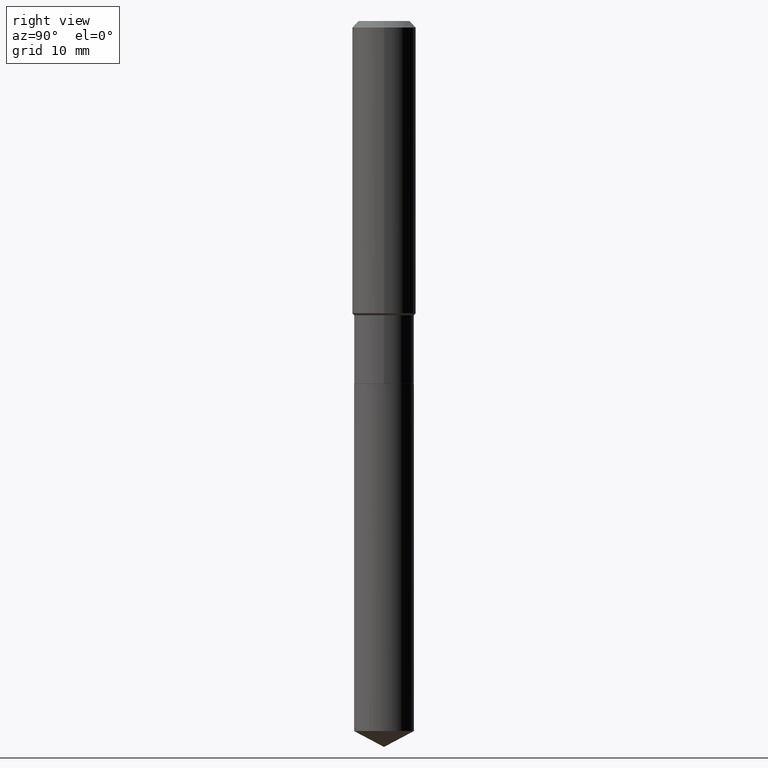
[diagram: clean part render]
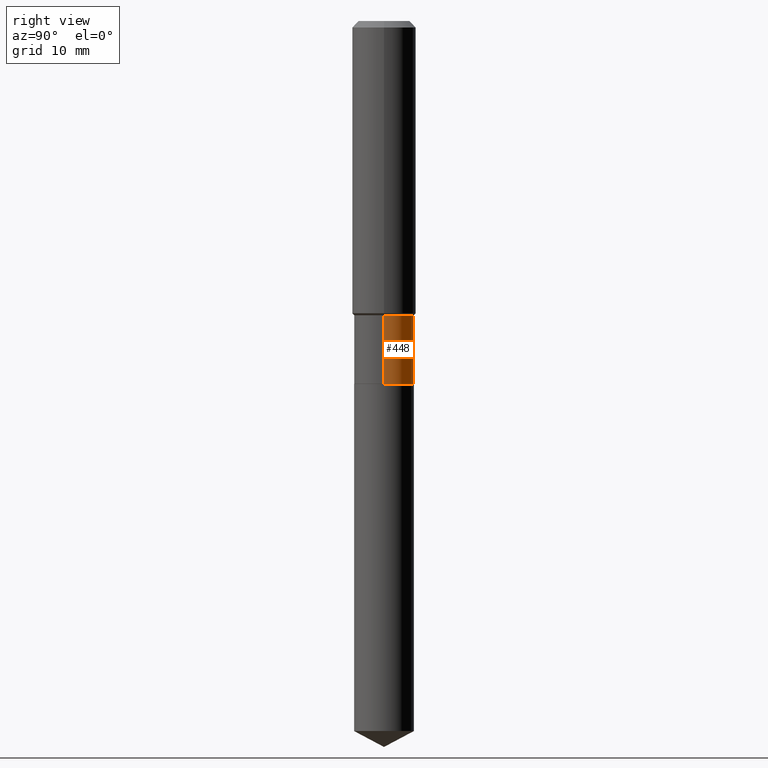
[diagram: same view with one face highlighted and labeled with its STEP entity id]
A machine part, right view. The second image highlights one B-rep face of the part: STEP entity #448.
In plain terms, the highlighted cylindrical surface (edge-blend (fillet) strip) has radius 3.7503 mm, axis along (-0, 0, 1).
Its self-contained STEP definition (entity closure, byte-faithful):
#36 = AXIS2_PLACEMENT_3D ( 'NONE', #202, #355, #318 ) ;
#41 = CARTESIAN_POINT ( 'NONE',  ( 0.1476500000000000035, -7.283928369094568636E-15, -1.790900000000000603 ) ) ;
#63 = CARTESIAN_POINT ( 'NONE',  ( -0.1476499999999999757, -4.611796919383547288E-15, -1.451799999999999979 ) ) ;
#65 = FACE_OUTER_BOUND ( 'NONE', #272, .T. ) ;
#68 = DIRECTION ( 'NONE',  ( -2.445468806185136597E-29, 3.491481338843145583E-15, 1.000000000000000000 ) ) ;
#72 = DIRECTION ( 'NONE',  ( -2.445468806185136597E-29, 3.491481338843145583E-15, 1.000000000000000000 ) ) ;
#120 = ORIENTED_EDGE ( 'NONE', *, *, #406, .T. ) ;
#143 = CYLINDRICAL_SURFACE ( 'NONE', #183, 0.1476500000000000035 ) ;
#151 = DIRECTION ( 'NONE',  ( 1.000000000000000000, -6.982962677686270655E-15, 0.000000000000000000 ) ) ;
#154 = VERTEX_POINT ( 'NONE', #41 ) ;
#176 = EDGE_CURVE ( 'NONE', #279, #276, #223, .T. ) ;
#183 = AXIS2_PLACEMENT_3D ( 'NONE', #412, #68, #377 ) ;
#202 = CARTESIAN_POINT ( 'NONE',  ( 3.550331612819581366E-29, -5.068932607732478922E-15, -1.451799999999999979 ) ) ;
#204 = VECTOR ( 'NONE', #210, 39.37007874015748143 ) ;
#210 = DIRECTION ( 'NONE',  ( -2.445468806185136877E-29, 3.491481338843145188E-15, 1.000000000000000000 ) ) ;
#214 = CARTESIAN_POINT ( 'NONE',  ( -0.1476500000000000312, -4.611796919383546499E-15, -1.790900000000000603 ) ) ;
#223 = CIRCLE ( 'NONE', #36, 0.1476499999999999757 ) ;
#238 = ORIENTED_EDGE ( 'NONE', *, *, #239, .T. ) ;
#239 = EDGE_CURVE ( 'NONE', #280, #276, #375, .T. ) ;
#255 = LINE ( 'NONE', #400, #489 ) ;
#272 = EDGE_LOOP ( 'NONE', ( #120, #238, #286, #383 ) ) ;
#276 = VERTEX_POINT ( 'NONE', #63 ) ;
#279 = VERTEX_POINT ( 'NONE', #372 ) ;
#280 = VERTEX_POINT ( 'NONE', #214 ) ;
#286 = ORIENTED_EDGE ( 'NONE', *, *, #176, .F. ) ;
#318 = DIRECTION ( 'NONE',  ( 1.000000000000000000, -6.982962677686265133E-15, 0.000000000000000000 ) ) ;
#348 = CIRCLE ( 'NONE', #438, 0.1476500000000000035 ) ;
#351 = EDGE_CURVE ( 'NONE', #154, #279, #255, .T. ) ;
#355 = DIRECTION ( 'NONE',  ( -2.445468806185136597E-29, 3.491481338843145583E-15, 1.000000000000000000 ) ) ;
#372 = CARTESIAN_POINT ( 'NONE',  ( 0.1476499999999999757, -6.099967047092856006E-15, -1.451799999999999979 ) ) ;
#375 = LINE ( 'NONE', #405, #204 ) ;
#377 = DIRECTION ( 'NONE',  ( 1.000000000000000000, -6.982962677686266711E-15, 4.876176775795935793E-29 ) ) ;
#383 = ORIENTED_EDGE ( 'NONE', *, *, #351, .F. ) ;
#400 = CARTESIAN_POINT ( 'NONE',  ( 0.1476500000000000035, -1.031034439360377281E-15, 7.199675009462699686E-30 ) ) ;
#405 = CARTESIAN_POINT ( 'NONE',  ( -0.1476500000000000035, 1.049116349349787949E-15, -7.262807660761367809E-30 ) ) ;
#406 = EDGE_CURVE ( 'NONE', #154, #280, #348, .T. ) ;
#407 = DIRECTION ( 'NONE',  ( -2.445468806185136877E-29, 3.491481338843145188E-15, 1.000000000000000000 ) ) ;
#412 = CARTESIAN_POINT ( 'NONE',  ( 0.000000000000000000, 0.000000000000000000, 0.000000000000000000 ) ) ;
#422 = CARTESIAN_POINT ( 'NONE',  ( 4.379590084996962044E-29, -6.252893929734190763E-15, -1.790900000000000603 ) ) ;
#438 = AXIS2_PLACEMENT_3D ( 'NONE', #422, #72, #151 ) ;
#448 = ADVANCED_FACE ( 'NONE', ( #65 ), #143, .T. ) ;
#489 = VECTOR ( 'NONE', #407, 39.37007874015748143 ) ;